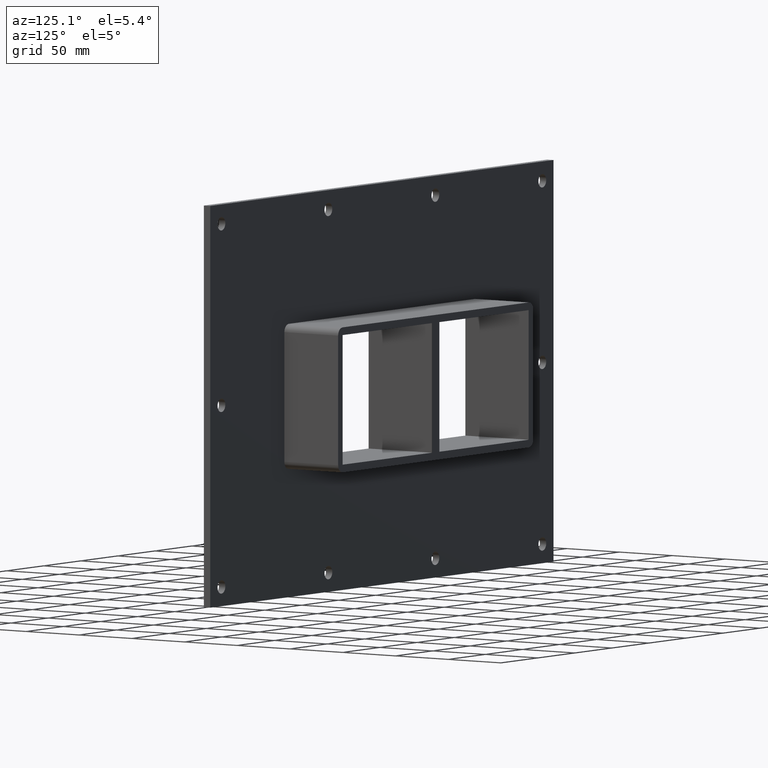
[diagram: clean part render]
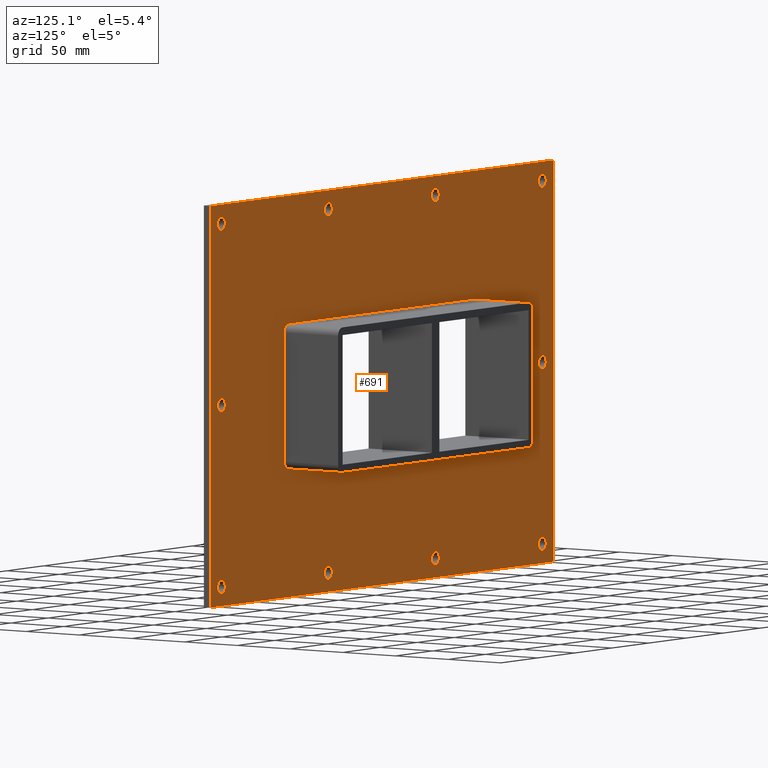
[diagram: same view with one face highlighted and labeled with its STEP entity id]
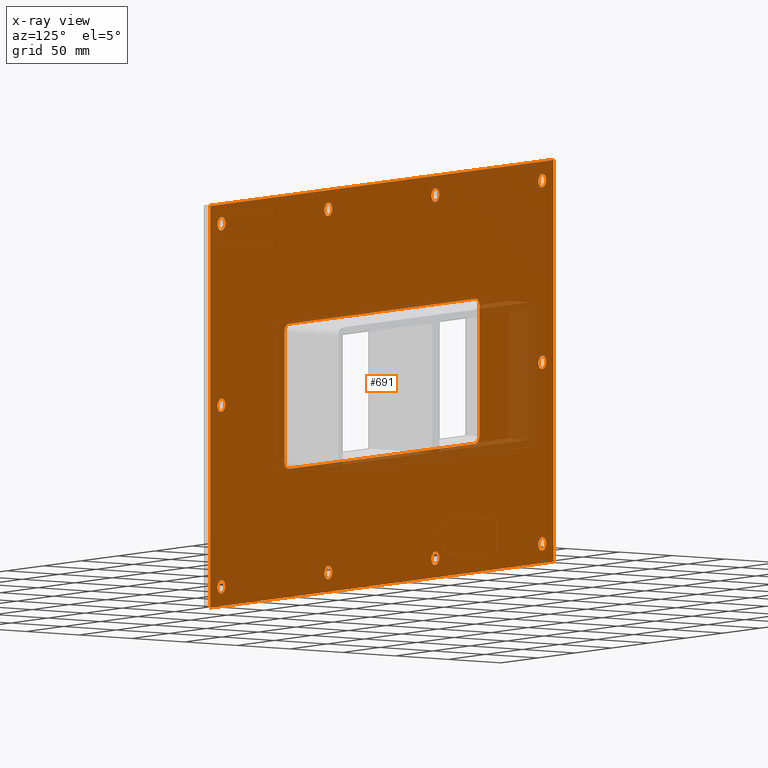
[diagram: x-ray of the same camera — body ghosted, the highlighted face saturated]
A machine part, auxiliary view. The second image highlights one B-rep face of the part: STEP entity #691.
The next image is the same camera in x-ray: the body ghosted, the highlighted face saturated — about 5% of this face is hidden behind the body in this view.
In plain terms, the highlighted planar face has unit normal (0, 1, 0).
Its self-contained STEP definition (entity closure, byte-faithful):
#73=CARTESIAN_POINT('',(-221.75000000000017,6.000000000000014,-141.49999999999994));
#74=VERTEX_POINT('',#73);
#75=CARTESIAN_POINT('',(-216.5000000000002,6.000000000000014,-141.49999999999994));
#76=DIRECTION('',(0.0,-1.0,0.0));
#77=DIRECTION('',(1.0,0.0,0.0));
#78=AXIS2_PLACEMENT_3D('',#75,#76,#77);
#79=CIRCLE('',#78,5.25);
#80=EDGE_CURVE('',#74,#74,#79,.T.);
#101=CARTESIAN_POINT('',(211.14999999999986,6.000000000000014,5.329071E-014));
#102=VERTEX_POINT('',#101);
#103=CARTESIAN_POINT('',(216.39999999999986,6.000000000000014,5.329071E-014));
#104=DIRECTION('',(0.0,-1.0,0.0));
#105=DIRECTION('',(1.0,0.0,0.0));
#106=AXIS2_PLACEMENT_3D('',#103,#104,#105);
#107=CIRCLE('',#106,5.25);
#108=EDGE_CURVE('',#102,#102,#107,.T.);
#129=CARTESIAN_POINT('',(-221.75000000000017,6.000000000000014,5.329071E-014));
#130=VERTEX_POINT('',#129);
#131=CARTESIAN_POINT('',(-216.5000000000002,6.000000000000014,5.329071E-014));
#132=DIRECTION('',(0.0,-1.0,0.0));
#133=DIRECTION('',(1.0,0.0,0.0));
#134=AXIS2_PLACEMENT_3D('',#131,#132,#133);
#135=CIRCLE('',#134,5.25);
#136=EDGE_CURVE('',#130,#130,#135,.T.);
#157=CARTESIAN_POINT('',(-77.450000000000159,6.000000000000014,141.50000000000006));
#158=VERTEX_POINT('',#157);
#159=CARTESIAN_POINT('',(-72.200000000000159,6.000000000000014,141.50000000000006));
#160=DIRECTION('',(0.0,-1.0,0.0));
#161=DIRECTION('',(1.0,0.0,0.0));
#162=AXIS2_PLACEMENT_3D('',#159,#160,#161);
#163=CIRCLE('',#162,5.25);
#164=EDGE_CURVE('',#158,#158,#163,.T.);
#185=CARTESIAN_POINT('',(-77.450000000000159,6.000000000000014,-141.5));
#186=VERTEX_POINT('',#185);
#187=CARTESIAN_POINT('',(-72.200000000000159,6.000000000000014,-141.5));
#188=DIRECTION('',(0.0,-1.0,0.0));
#189=DIRECTION('',(1.0,0.0,0.0));
#190=AXIS2_PLACEMENT_3D('',#187,#188,#189);
#191=CIRCLE('',#190,5.25);
#192=EDGE_CURVE('',#186,#186,#191,.T.);
#213=CARTESIAN_POINT('',(66.849999999999866,6.000000000000014,141.50000000000006));
#214=VERTEX_POINT('',#213);
#215=CARTESIAN_POINT('',(72.099999999999852,6.000000000000014,141.50000000000006));
#216=DIRECTION('',(0.0,-1.0,0.0));
#217=DIRECTION('',(1.0,0.0,0.0));
#218=AXIS2_PLACEMENT_3D('',#215,#216,#217);
#219=CIRCLE('',#218,5.25);
#220=EDGE_CURVE('',#214,#214,#219,.T.);
#241=CARTESIAN_POINT('',(66.849999999999866,6.000000000000014,-141.5));
#242=VERTEX_POINT('',#241);
#243=CARTESIAN_POINT('',(72.099999999999852,6.000000000000014,-141.5));
#244=DIRECTION('',(0.0,-1.0,0.0));
#245=DIRECTION('',(1.0,0.0,0.0));
#246=AXIS2_PLACEMENT_3D('',#243,#244,#245);
#247=CIRCLE('',#246,5.25);
#248=EDGE_CURVE('',#242,#242,#247,.T.);
#269=CARTESIAN_POINT('',(211.14999999999986,6.000000000000014,-141.5));
#270=VERTEX_POINT('',#269);
#271=CARTESIAN_POINT('',(216.39999999999986,6.000000000000014,-141.5));
#272=DIRECTION('',(0.0,-1.0,0.0));
#273=DIRECTION('',(1.0,0.0,0.0));
#274=AXIS2_PLACEMENT_3D('',#271,#272,#273);
#275=CIRCLE('',#274,5.25);
#276=EDGE_CURVE('',#270,#270,#275,.T.);
#297=CARTESIAN_POINT('',(-221.75000000000017,6.000000000000014,141.50000000000006));
#298=VERTEX_POINT('',#297);
#299=CARTESIAN_POINT('',(-216.5000000000002,6.000000000000014,141.50000000000006));
#300=DIRECTION('',(0.0,-1.0,0.0));
#301=DIRECTION('',(1.0,0.0,0.0));
#302=AXIS2_PLACEMENT_3D('',#299,#300,#301);
#303=CIRCLE('',#302,5.25);
#304=EDGE_CURVE('',#298,#298,#303,.T.);
#325=CARTESIAN_POINT('',(211.14999999999986,6.000000000000014,141.50000000000006));
#326=VERTEX_POINT('',#325);
#327=CARTESIAN_POINT('',(216.39999999999986,6.000000000000014,141.50000000000006));
#328=DIRECTION('',(0.0,-1.0,0.0));
#329=DIRECTION('',(1.0,0.0,0.0));
#330=AXIS2_PLACEMENT_3D('',#327,#328,#329);
#331=CIRCLE('',#330,5.25);
#332=EDGE_CURVE('',#326,#326,#331,.T.);
#552=CARTESIAN_POINT('',(0.0,6.000000000000001,0.0));
#553=DIRECTION('',(0.0,1.0,0.0));
#554=DIRECTION('',(0.0,0.0,1.0));
#555=AXIS2_PLACEMENT_3D('',#552,#553,#554);
#556=PLANE('',#555);
#557=CARTESIAN_POINT('',(-231.50000000000003,6.000000000000001,156.5));
#558=VERTEX_POINT('',#557);
#559=CARTESIAN_POINT('',(231.50000000000003,6.000000000000001,156.5));
#560=VERTEX_POINT('',#559);
#561=CARTESIAN_POINT('',(-231.50000000000003,6.000000000000001,156.5));
#562=DIRECTION('',(1.0,0.0,0.0));
#563=VECTOR('',#562,463.00000000000006);
#564=LINE('',#561,#563);
#565=EDGE_CURVE('',#558,#560,#564,.T.);
#566=ORIENTED_EDGE('',*,*,#565,.T.);
#567=CARTESIAN_POINT('',(231.50000000000003,6.000000000000001,-156.5));
#568=VERTEX_POINT('',#567);
#569=CARTESIAN_POINT('',(231.50000000000003,6.000000000000001,156.5));
#570=DIRECTION('',(0.0,0.0,-1.0));
#571=VECTOR('',#570,313.0);
#572=LINE('',#569,#571);
#573=EDGE_CURVE('',#560,#568,#572,.T.);
#574=ORIENTED_EDGE('',*,*,#573,.T.);
#575=CARTESIAN_POINT('',(-231.50000000000003,6.000000000000001,-156.5));
#576=VERTEX_POINT('',#575);
#577=CARTESIAN_POINT('',(231.50000000000003,6.000000000000001,-156.5));
#578=DIRECTION('',(-1.0,0.0,0.0));
#579=VECTOR('',#578,463.00000000000006);
#580=LINE('',#577,#579);
#581=EDGE_CURVE('',#568,#576,#580,.T.);
#582=ORIENTED_EDGE('',*,*,#581,.T.);
#583=CARTESIAN_POINT('',(-231.50000000000003,6.000000000000001,-156.5));
#584=DIRECTION('',(0.0,0.0,1.0));
#585=VECTOR('',#584,313.0);
#586=LINE('',#583,#585);
#587=EDGE_CURVE('',#576,#558,#586,.T.);
#588=ORIENTED_EDGE('',*,*,#587,.T.);
#589=EDGE_LOOP('',(#566,#574,#582,#588));
#590=FACE_OUTER_BOUND('',#589,.T.);
#591=ORIENTED_EDGE('',*,*,#80,.T.);
#592=EDGE_LOOP('',(#591));
#593=FACE_BOUND('',#592,.T.);
#594=ORIENTED_EDGE('',*,*,#108,.T.);
#595=EDGE_LOOP('',(#594));
#596=FACE_BOUND('',#595,.T.);
#597=ORIENTED_EDGE('',*,*,#136,.T.);
#598=EDGE_LOOP('',(#597));
#599=FACE_BOUND('',#598,.T.);
#600=ORIENTED_EDGE('',*,*,#164,.T.);
#601=EDGE_LOOP('',(#600));
#602=FACE_BOUND('',#601,.T.);
#603=ORIENTED_EDGE('',*,*,#192,.T.);
#604=EDGE_LOOP('',(#603));
#605=FACE_BOUND('',#604,.T.);
#606=ORIENTED_EDGE('',*,*,#220,.T.);
#607=EDGE_LOOP('',(#606));
#608=FACE_BOUND('',#607,.T.);
#609=ORIENTED_EDGE('',*,*,#248,.T.);
#610=EDGE_LOOP('',(#609));
#611=FACE_BOUND('',#610,.T.);
#612=ORIENTED_EDGE('',*,*,#276,.T.);
#613=EDGE_LOOP('',(#612));
#614=FACE_BOUND('',#613,.T.);
#615=ORIENTED_EDGE('',*,*,#304,.T.);
#616=EDGE_LOOP('',(#615));
#617=FACE_BOUND('',#616,.T.);
#618=ORIENTED_EDGE('',*,*,#332,.T.);
#619=EDGE_LOOP('',(#618));
#620=FACE_BOUND('',#619,.T.);
#621=CARTESIAN_POINT('',(-131.50000000000003,6.000000000000001,50.500000000000057));
#622=VERTEX_POINT('',#621);
#623=CARTESIAN_POINT('',(-125.5,6.000000000000001,56.500000000000057));
#624=VERTEX_POINT('',#623);
#625=CARTESIAN_POINT('',(-125.5,6.000000000000001,50.500000000000057));
#626=DIRECTION('',(0.0,1.0,0.0));
#627=DIRECTION('',(-0.707106781186549,0.0,0.707106781186546));
#628=AXIS2_PLACEMENT_3D('',#625,#626,#627);
#629=CIRCLE('',#628,6.000000000000001);
#630=EDGE_CURVE('',#622,#624,#629,.T.);
#631=ORIENTED_EDGE('',*,*,#630,.F.);
#632=CARTESIAN_POINT('',(-131.50000000000003,6.000000000000001,-50.500000000000057));
#633=VERTEX_POINT('',#632);
#634=CARTESIAN_POINT('',(-131.50000000000003,6.000000000000001,-50.500000000000057));
#635=DIRECTION('',(0.0,0.0,1.0));
#636=VECTOR('',#635,101.00000000000011);
#637=LINE('',#634,#636);
#638=EDGE_CURVE('',#633,#622,#637,.T.);
#639=ORIENTED_EDGE('',*,*,#638,.F.);
#640=CARTESIAN_POINT('',(-125.5,6.000000000000001,-56.500000000000057));
#641=VERTEX_POINT('',#640);
#642=CARTESIAN_POINT('',(-125.5,6.000000000000001,-50.500000000000057));
#643=DIRECTION('',(0.0,1.0,0.0));
#644=DIRECTION('',(-0.707106781186549,0.0,-0.707106781186546));
#645=AXIS2_PLACEMENT_3D('',#642,#643,#644);
#646=CIRCLE('',#645,6.000000000000001);
#647=EDGE_CURVE('',#641,#633,#646,.T.);
#648=ORIENTED_EDGE('',*,*,#647,.F.);
#649=CARTESIAN_POINT('',(125.5,6.000000000000001,-56.500000000000057));
#650=VERTEX_POINT('',#649);
#651=CARTESIAN_POINT('',(125.50000000000001,6.000000000000001,-56.500000000000057));
#652=DIRECTION('',(-1.0,0.0,0.0));
#653=VECTOR('',#652,251.0);
#654=LINE('',#651,#653);
#655=EDGE_CURVE('',#650,#641,#654,.T.);
#656=ORIENTED_EDGE('',*,*,#655,.F.);
#657=CARTESIAN_POINT('',(131.50000000000003,6.000000000000001,-50.500000000000057));
#658=VERTEX_POINT('',#657);
#659=CARTESIAN_POINT('',(125.5,6.000000000000001,-50.500000000000057));
#660=DIRECTION('',(0.0,1.0,0.0));
#661=DIRECTION('',(0.707106781186549,0.0,-0.707106781186546));
#662=AXIS2_PLACEMENT_3D('',#659,#660,#661);
#663=CIRCLE('',#662,6.000000000000001);
#664=EDGE_CURVE('',#658,#650,#663,.T.);
#665=ORIENTED_EDGE('',*,*,#664,.F.);
#666=CARTESIAN_POINT('',(131.50000000000003,6.000000000000001,50.500000000000057));
#667=VERTEX_POINT('',#666);
#668=CARTESIAN_POINT('',(131.50000000000003,6.000000000000001,50.500000000000057));
#669=DIRECTION('',(0.0,0.0,-1.0));
#670=VECTOR('',#669,101.00000000000011);
#671=LINE('',#668,#670);
#672=EDGE_CURVE('',#667,#658,#671,.T.);
#673=ORIENTED_EDGE('',*,*,#672,.F.);
#674=CARTESIAN_POINT('',(125.5,6.000000000000001,56.500000000000057));
#675=VERTEX_POINT('',#674);
#676=CARTESIAN_POINT('',(125.5,6.000000000000001,50.500000000000057));
#677=DIRECTION('',(0.0,1.0,0.0));
#678=DIRECTION('',(0.707106781186549,0.0,0.707106781186546));
#679=AXIS2_PLACEMENT_3D('',#676,#677,#678);
#680=CIRCLE('',#679,6.000000000000001);
#681=EDGE_CURVE('',#675,#667,#680,.T.);
#682=ORIENTED_EDGE('',*,*,#681,.F.);
#683=CARTESIAN_POINT('',(-125.50000000000001,6.000000000000001,56.500000000000057));
#684=DIRECTION('',(1.0,0.0,0.0));
#685=VECTOR('',#684,251.0);
#686=LINE('',#683,#685);
#687=EDGE_CURVE('',#624,#675,#686,.T.);
#688=ORIENTED_EDGE('',*,*,#687,.F.);
#689=EDGE_LOOP('',(#631,#639,#648,#656,#665,#673,#682,#688));
#690=FACE_BOUND('',#689,.T.);
#691=ADVANCED_FACE('',(#590,#593,#596,#599,#602,#605,#608,#611,#614,#617,#620,#690),#556,.T.);